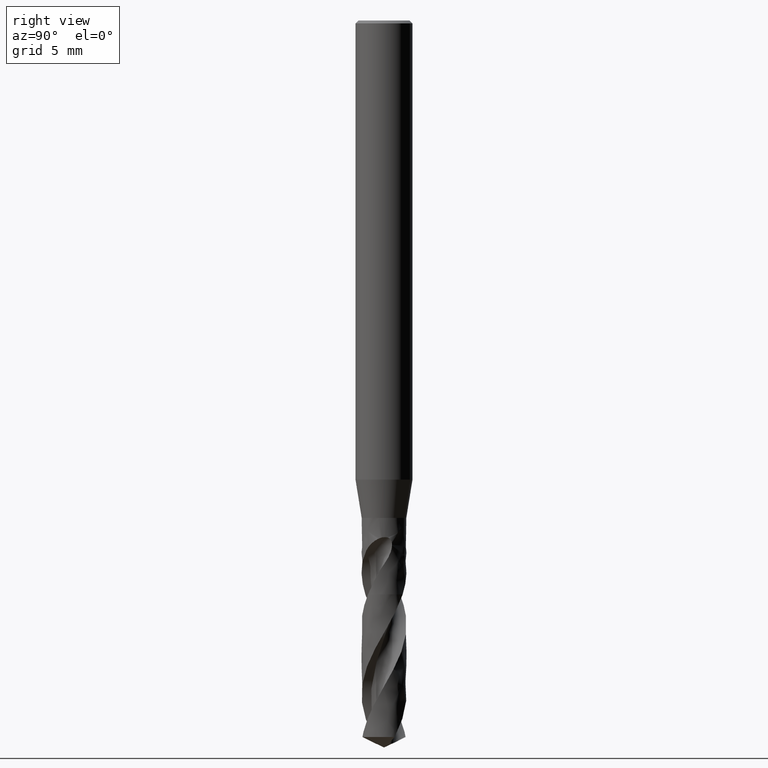
[diagram: clean part render]
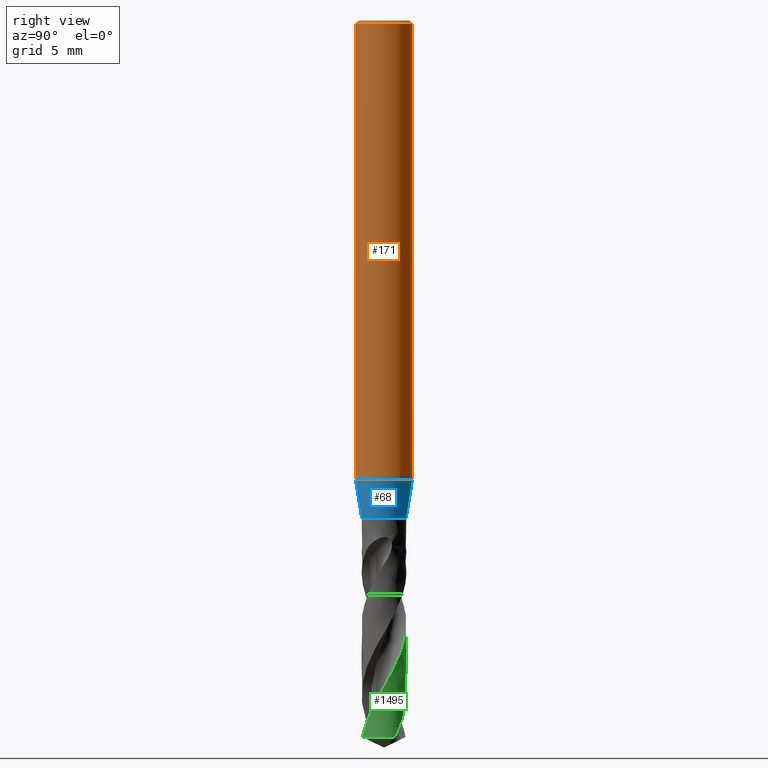
[diagram: same view with three faces highlighted in distinct colors, each labeled with its STEP entity id]
A machine part, right view with three faces highlighted in distinct colors.
Their STEP definitions:

[orange] entity #171 — the highlighted face is a freeform B-spline surface patch.
#73 = VERTEX_POINT('', #74);
#74 = CARTESIAN_POINT('', (-1.5, 1.56142466891288E-15, -24.));
#82 = EDGE_CURVE('', #73, #73, #83, .T.);
#83 = CIRCLE('', #84, 1.5);
#84 = AXIS2_PLACEMENT_3D('', #85, #86, #87);
#85 = CARTESIAN_POINT('', (8.99855869597115E-32, 1.46957615897682E-15, -24.));
#86 = DIRECTION('', (3.74939945665464E-33, 6.12323399573677E-17, -1.));
#87 = DIRECTION('', (-1., 6.12323399573677E-17, 0.));
#120 = VERTEX_POINT('', #121);
#121 = CARTESIAN_POINT('', (-1.5, 1.01033360929657E-16, -0.149999999999999));
#137 = EDGE_CURVE('', #120, #120, #138, .T.);
#138 = CIRCLE('', #139, 1.5);
#139 = AXIS2_PLACEMENT_3D('', #140, #141, #142);
#140 = CARTESIAN_POINT('', (5.62409918498187E-34, 9.18485099360502E-18, -0.149999999999999));
#141 = DIRECTION('', (3.74939945665464E-33, 6.12323399573677E-17, -1.));
#142 = DIRECTION('', (-1., 6.12323399573677E-17, 0.));
#171 = ADVANCED_FACE('', (#172), #183, .T.);
#172 = FACE_OUTER_BOUND('', #173, .T.);
#173 = EDGE_LOOP('', (#174, #180, #181, #182));
#174 = ORIENTED_EDGE('', *, *, #175, .T.);
#175 = EDGE_CURVE('', #73, #120, #176, .T.);
#176 = LINE('', #177, #178);
#177 = CARTESIAN_POINT('', (-1.5, 1.56142466891288E-15, -24.));
#178 = VECTOR('', #179, 23.85);
#179 = DIRECTION('', (0., -1.46039130798322E-15, 23.85));
#180 = ORIENTED_EDGE('', *, *, #137, .T.);
#181 = ORIENTED_EDGE('', *, *, #175, .F.);
#182 = ORIENTED_EDGE('', *, *, #82, .F.);
#183 = (
   BOUNDED_SURFACE ()
   B_SPLINE_SURFACE (1, 2, ((#184, #185, #186, #187, #188, #189, #190, #191, #192), (#193, #194, #195, #196, #197, #198, #199, #200, #201)), .UNSPECIFIED., .F., .T., .U.)
   B_SPLINE_SURFACE_WITH_KNOTS ((2, 2), (3, 2, 2, 2, 3), (0., 1.), (0., 2.35619449019235, 4.71238898038469, 7.06858347057704, 9.42477796076938), .UNSPECIFIED.)
   GEOMETRIC_REPRESENTATION_ITEM ()
   RATIONAL_B_SPLINE_SURFACE (((1., 0.707106781186548, 1., 0.707106781186548, 1., 0.707106781186548, 1., 0.707106781186548, 1.), (1., 0.707106781186548, 1., 0.707106781186548, 1., 0.707106781186548, 1., 0.707106781186548, 1.)))
   REPRESENTATION_ITEM ('')
   SURFACE ()
);
#184 = CARTESIAN_POINT('', (-1.5, 1.56142466891288E-15, -24.));
#185 = CARTESIAN_POINT('', (-1.5, 1.5, -24.));
#186 = CARTESIAN_POINT('', (8.62816615085482E-32, 1.5, -24.));
#187 = CARTESIAN_POINT('', (1.5, 1.5, -24.));
#188 = CARTESIAN_POINT('', (1.5, 1.56142466891288E-15, -24.));
#189 = CARTESIAN_POINT('', (1.5, -1.5, -24.));
#190 = CARTESIAN_POINT('', (1.83697019872103E-16, -1.5, -24.));
#191 = CARTESIAN_POINT('', (-1.5, -1.5, -24.));
#192 = CARTESIAN_POINT('', (-1.5, 1.56142466891288E-15, -24.));
#193 = CARTESIAN_POINT('', (-1.5, 1.01033360929657E-16, -0.149999999999999));
#194 = CARTESIAN_POINT('', (-1.5, 1.5, -0.150000000000002));
#195 = CARTESIAN_POINT('', (0., 1.5, -0.149999999999999));
#196 = CARTESIAN_POINT('', (1.5, 1.5, -0.150000000000002));
#197 = CARTESIAN_POINT('', (1.5, 1.01033360929656E-16, -0.149999999999999));
#198 = CARTESIAN_POINT('', (1.5, -1.5, -0.150000000000002));
#199 = CARTESIAN_POINT('', (1.83697019872103E-16, -1.5, -0.149999999999999));
#200 = CARTESIAN_POINT('', (-1.5, -1.5, -0.150000000000002));
#201 = CARTESIAN_POINT('', (-1.5, 1.01033360929657E-16, -0.149999999999999));

[blue] entity #68 — the highlighted face is a freeform B-spline surface patch.
#68 = ADVANCED_FACE('', (#69), #96, .T.);
#69 = FACE_OUTER_BOUND('', #70, .T.);
#70 = EDGE_LOOP('', (#71, #81, #88, #89));
#71 = ORIENTED_EDGE('', *, *, #72, .F.);
#72 = EDGE_CURVE('', #73, #75, #77, .T.);
#73 = VERTEX_POINT('', #74);
#74 = CARTESIAN_POINT('', (-1.5, 1.56142466891288E-15, -24.));
#75 = VERTEX_POINT('', #76);
#76 = CARTESIAN_POINT('', (-1.175, 1.66398883834147E-15, -26.));
#77 = LINE('', #78, #79);
#78 = CARTESIAN_POINT('', (-1.5, 1.56142466891288E-15, -24.));
#79 = VECTOR('', #80, 2.02623419179521);
#80 = DIRECTION('', (0.325, 1.02564169428591E-16, -2.));
#81 = ORIENTED_EDGE('', *, *, #82, .T.);
#82 = EDGE_CURVE('', #73, #73, #83, .T.);
#83 = CIRCLE('', #84, 1.5);
#84 = AXIS2_PLACEMENT_3D('', #85, #86, #87);
#85 = CARTESIAN_POINT('', (8.99855869597115E-32, 1.46957615897682E-15, -24.));
#86 = DIRECTION('', (3.74939945665464E-33, 6.12323399573677E-17, -1.));
#87 = DIRECTION('', (-1., 6.12323399573677E-17, 0.));
#88 = ORIENTED_EDGE('', *, *, #72, .T.);
#89 = ORIENTED_EDGE('', *, *, #90, .F.);
#90 = EDGE_CURVE('', #75, #75, #91, .T.);
#91 = CIRCLE('', #92, 1.175);
#92 = AXIS2_PLACEMENT_3D('', #93, #94, #95);
#93 = CARTESIAN_POINT('', (9.74843858730207E-32, 1.59204083889156E-15, -26.));
#94 = DIRECTION('', (3.74939945665464E-33, 6.12323399573677E-17, -1.));
#95 = DIRECTION('', (-1., 6.12323399573677E-17, 0.));
#96 = (
   BOUNDED_SURFACE ()
   B_SPLINE_SURFACE (2, 1, ((#97, #98), (#99, #100), (#101, #102), (#103, #104), (#105, #106), (#107, #108), (#109, #110), (#111, #112), (#113, #114)), .UNSPECIFIED., .T., .F., .U.)
   B_SPLINE_SURFACE_WITH_KNOTS ((3, 2, 2, 2, 3), (2, 2), (0., 0.25, 0.5, 0.75, 1.), (0., 1.), .UNSPECIFIED.)
   GEOMETRIC_REPRESENTATION_ITEM ()
   RATIONAL_B_SPLINE_SURFACE (((1., 1.), (0.707106781186548, 0.707106781186548), (1., 1.), (0.707106781186548, 0.707106781186548), (1., 1.), (0.707106781186548, 0.707106781186548), (1., 1.), (0.707106781186548, 0.707106781186548), (1., 1.)))
   REPRESENTATION_ITEM ('')
   SURFACE ()
);
#97 = CARTESIAN_POINT('', (-1.5, 1.56142466891288E-15, -24.));
#98 = CARTESIAN_POINT('', (-1.175, 1.66398883834147E-15, -26.));
#99 = CARTESIAN_POINT('', (-1.5, 1.5, -24.));
#100 = CARTESIAN_POINT('', (-1.175, 1.175, -26.));
#101 = CARTESIAN_POINT('', (8.62816615085482E-32, 1.5, -24.));
#102 = CARTESIAN_POINT('', (9.86076131526265E-32, 1.175, -26.));
#103 = CARTESIAN_POINT('', (1.5, 1.5, -24.));
#104 = CARTESIAN_POINT('', (1.175, 1.175, -26.));
#105 = CARTESIAN_POINT('', (1.5, 1.56142466891288E-15, -24.));
#106 = CARTESIAN_POINT('', (1.175, 1.66398883834147E-15, -26.));
#107 = CARTESIAN_POINT('', (1.5, -1.5, -24.));
#108 = CARTESIAN_POINT('', (1.175, -1.175, -26.));
#109 = CARTESIAN_POINT('', (1.83697019872103E-16, -1.5, -24.));
#110 = CARTESIAN_POINT('', (1.43895998899814E-16, -1.175, -26.));
#111 = CARTESIAN_POINT('', (-1.5, -1.5, -24.));
#112 = CARTESIAN_POINT('', (-1.175, -1.175, -26.));
#113 = CARTESIAN_POINT('', (-1.5, 1.56142466891288E-15, -24.));
#114 = CARTESIAN_POINT('', (-1.175, 1.66398883834147E-15, -26.));

[green] entity #1495 — the highlighted face is a freeform B-spline surface patch.
#1337 = VERTEX_POINT('', #1338);
#1338 = CARTESIAN_POINT('', (-0.825852395738025, 0.835818652851064, -30.));
#1393 = EDGE_CURVE('', #1394, #1337, #1396, .T.);
#1394 = VERTEX_POINT('', #1395);
#1395 = CARTESIAN_POINT('', (-1.175, 1.90891819817094E-15, -30.));
#1396 = CIRCLE('', #1397, 1.175);
#1397 = AXIS2_PLACEMENT_3D('', #1398, #1399, #1400);
#1398 = CARTESIAN_POINT('', (1.12481983699639E-31, 1.83697019872103E-15, -30.));
#1399 = DIRECTION('', (3.74939945665464E-33, 6.12323399573677E-17, -1.));
#1400 = DIRECTION('', (-1., 6.12323399573677E-17, 0.));
#1495 = ADVANCED_FACE('', (#1496), #1718, .T.);
#1496 = FACE_OUTER_BOUND('', #1497, .T.);
#1497 = EDGE_LOOP('', (#1498, #1499, #1526, #1616, #1625, #1634, #1712));
#1498 = ORIENTED_EDGE('', *, *, #1393, .T.);
#1499 = ORIENTED_EDGE('', *, *, #1500, .T.);
#1500 = EDGE_CURVE('', #1337, #1501, #1503, .T.);
#1501 = VERTEX_POINT('', #1502);
#1502 = CARTESIAN_POINT('', (-0.26697209790834, 1.14426871797599, -31.1212727796582));
#1503 = B_SPLINE_CURVE_WITH_KNOTS('', 3, (#1504, #1505, #1506, #1507, #1508, #1509, #1510, #1511, #1512, #1513, #1514, #1515, #1516, #1517, #1518, #1519, #1520, #1521, #1522, #1523, #1524, #1525), .UNSPECIFIED., .F., .U., (4, 3, 3, 3, 3, 3, 3, 4), (0.813532623803669, 0.875933690164875, 1.07293763319325, 1.26990593108702, 1.46682811431798, 1.66370732220614, 1.95877341215135, 2.10770555532025), .UNSPECIFIED.);
#1504 = CARTESIAN_POINT('', (-0.825852395738025, 0.835818652851064, -30.));
#1505 = CARTESIAN_POINT('', (-0.818445904757134, 0.843136829227861, -30.0180067479815));
#1506 = CARTESIAN_POINT('', (-0.810942125325879, 0.850356474669245, -30.0360158168574));
#1507 = CARTESIAN_POINT('', (-0.803348929654479, 0.857470406033355, -30.0540266510148));
#1508 = CARTESIAN_POINT('', (-0.779376751378023, 0.879929517886514, -30.1108879444692));
#1509 = CARTESIAN_POINT('', (-0.75449480592905, 0.901353562566957, -30.1677910714515));
#1510 = CARTESIAN_POINT('', (-0.728767968576532, 0.921695311899133, -30.2246824311101));
#1511 = CARTESIAN_POINT('', (-0.703045786138865, 0.94203338067354, -30.2815634970652));
#1512 = CARTESIAN_POINT('', (-0.676456550652542, 0.961305208071382, -30.3384502827728));
#1513 = CARTESIAN_POINT('', (-0.649111758976145, 0.979427855617195, -30.3953234345152));
#1514 = CARTESIAN_POINT('', (-0.621773369324141, 0.99754626024783, -30.452183270987));
#1515 = CARTESIAN_POINT('', (-0.593672610084757, 1.01452090914273, -30.5090575529595));
#1516 = CARTESIAN_POINT('', (-0.564925686131959, 1.03028344116963, -30.5659246092053));
#1517 = CARTESIAN_POINT('', (-0.536185035768509, 1.04604253325794, -30.6227792550605));
#1518 = CARTESIAN_POINT('', (-0.506783585366916, 1.06059854218704, -30.6796498401915));
#1519 = CARTESIAN_POINT('', (-0.476833319899474, 1.0738971016972, -30.7365089171754));
#1520 = CARTESIAN_POINT('', (-0.431946367035871, 1.09382787040893, -30.8217245461059));
#1521 = CARTESIAN_POINT('', (-0.385791985281999, 1.11094548255398, -30.9069859250054));
#1522 = CARTESIAN_POINT('', (-0.338781901869352, 1.1251008056904, -30.9922118387715));
#1523 = CARTESIAN_POINT('', (-0.31505395510836, 1.13224558675401, -31.0352289065514));
#1524 = CARTESIAN_POINT('', (-0.29109947352036, 1.13863950170627, -31.0782528639844));
#1525 = CARTESIAN_POINT('', (-0.266972097908315, 1.144268717976, -31.1212727796583));
#1526 = ORIENTED_EDGE('', *, *, #1527, .T.);
#1527 = EDGE_CURVE('', #1501, #1528, #1530, .T.);
#1528 = VERTEX_POINT('', #1529);
#1529 = CARTESIAN_POINT('', (0.484981410679121, -1.07024204332276, -37.1754388657541));
#1530 = B_SPLINE_CURVE_WITH_KNOTS('', 3, (#1531, #1532, #1533, #1534, #1535, #1536, #1537, #1538, #1539, #1540, #1541, #1542, #1543, #1544, #1545, #1546, #1547, #1548, #1549, #1550, #1551, #1552, #1553, #1554, #1555, #1556, #1557, #1558, #1559, #1560, #1561, #1562, #1563, #1564, #1565, #1566, #1567, #1568, #1569, #1570, #1571, #1572, #1573, #1574, #1575, #1576, #1577, #1578, #1579, #1580, #1581, #1582, #1583, #1584, #1585, #1586, #1587, #1588, #1589, #1590, #1591, #1592, #1593, #1594, #1595, #1596, #1597, #1598, #1599, #1600, #1601, #1602, #1603, #1604, #1605, #1606, #1607, #1608, #1609, #1610, #1611, #1612, #1613, #1614, #1615), .UNSPECIFIED., .F., .U., (4, 3, 3, 3, 3, 3, 3, 3, 3, 3, 3, 3, 3, 3, 3, 3, 3, 3, 3, 3, 3, 3, 3, 3, 3, 3, 3, 3, 4), (0., 0.294843756684299, 0.491511732513982, 0.530419388641798, 0.556367241475057, 0.852812760780779, 1.14908598698336, 1.44519615523867, 1.74115064617083, 2.03695524308471, 2.33261423586313, 2.62813058028435, 2.92350611585027, 3.21874159822448, 3.51383669492108, 3.80878993747728, 4.10359860910891, 4.23479178679108, 4.27370965887534, 4.57013785983107, 4.8663978603308, 5.1624985766576, 5.45844714150121, 5.75424913949192, 6.04990876853933, 6.34542893833019, 6.64081145444346, 6.9360570782806, 6.97246241237896), .UNSPECIFIED.);
#1531 = CARTESIAN_POINT('', (-0.26697209790834, 1.14426871797599, -31.1212727796582));
#1532 = CARTESIAN_POINT('', (-0.219206679960106, 1.15541298298716, -31.2064401134495));
#1533 = CARTESIAN_POINT('', (-0.170730185221393, 1.16356335772041, -31.2916555218373));
#1534 = CARTESIAN_POINT('', (-0.121969695153957, 1.16865238350175, -31.3768360417025));
#1535 = CARTESIAN_POINT('', (-0.0894452591955109, 1.17204688779995, -31.4336535256824));
#1536 = CARTESIAN_POINT('', (-0.0567772620056454, 1.17408263088167, -31.4904863675599));
#1537 = CARTESIAN_POINT('', (-0.0240934390361698, 1.17475295538911, -31.5473098350783));
#1538 = CARTESIAN_POINT('', (-0.017627460324211, 1.17488556851699, -31.5585514616058));
#1539 = CARTESIAN_POINT('', (-0.011160523142252, 1.17496479273383, -31.5697932934221));
#1540 = CARTESIAN_POINT('', (-0.0046936248493313, 1.17499062544591, -31.5810351434953));
#1541 = CARTESIAN_POINT('', (-0.000380794370900192, 1.17500785350533, -31.5885324306697));
#1542 = CARTESIAN_POINT('', (0.00393205940250807, 1.17500133539659, -31.596029796608));
#1543 = CARTESIAN_POINT('', (0.00824464090065329, 1.17497107449351, -31.603527185728));
#1544 = CARTESIAN_POINT('', (0.0575144386747197, 1.17462535382113, -31.6891823428389));
#1545 = CARTESIAN_POINT('', (0.106774412330736, 1.17117443136474, -31.7748864245607));
#1546 = CARTESIAN_POINT('', (0.155588328871744, 1.16465328399438, -31.8605550572337));
#1547 = CARTESIAN_POINT('', (0.204373874934504, 1.15813592669216, -31.9461738995958));
#1548 = CARTESIAN_POINT('', (0.252761010894092, 1.14854563179499, -32.0318414369643));
#1549 = CARTESIAN_POINT('', (0.300322446314358, 1.13597157897536, -32.1174737595693));
#1550 = CARTESIAN_POINT('', (0.347857705660164, 1.12340444645449, -32.203058953276));
#1551 = CARTESIAN_POINT('', (0.394614322357277, 1.10784465042417, -32.288692569991));
#1552 = CARTESIAN_POINT('', (0.440180490567202, 1.08943386018817, -32.3742912043273));
#1553 = CARTESIAN_POINT('', (0.48572270276395, 1.07103274926361, -32.4598448359326));
#1554 = CARTESIAN_POINT('', (0.530120022605267, 1.04976577026104, -32.5454467109615));
#1555 = CARTESIAN_POINT('', (0.572982836860078, 1.02582438490411, -32.6310136851818));
#1556 = CARTESIAN_POINT('', (0.615823942103333, 1.00189512529814, -32.7165373217338));
#1557 = CARTESIAN_POINT('', (0.657173416990545, 0.975271139810128, -32.8021091729448));
#1558 = CARTESIAN_POINT('', (0.696670127434656, 0.946190114903026, -32.8876461008021));
#1559 = CARTESIAN_POINT('', (0.736147396381112, 0.917123404572281, -32.9731409247484));
#1560 = CARTESIAN_POINT('', (0.773811314601319, 0.885574443732415, -33.058683942628));
#1561 = CARTESIAN_POINT('', (0.809334492612236, 0.851823150112803, -33.1441921138021));
#1562 = CARTESIAN_POINT('', (0.844840531543639, 0.818088140681078, -33.2296590293389));
#1563 = CARTESIAN_POINT('', (0.878241593321823, 0.7821209285082, -33.3151739535754));
#1564 = CARTESIAN_POINT('', (0.909248490403216, 0.744239331599369, -33.4006542452359));
#1565 = CARTESIAN_POINT('', (0.940240613189494, 0.706375784671184, -33.4860938068919));
#1566 = CARTESIAN_POINT('', (0.968870418189944, 0.666563567071444, -33.5715811104992));
#1567 = CARTESIAN_POINT('', (0.994891064340358, 0.625153397251996, -33.6570340353538));
#1568 = CARTESIAN_POINT('', (1.02089937272374, 0.583762862188156, -33.742446442449));
#1569 = CARTESIAN_POINT('', (1.04432595216403, 0.540736204557989, -33.8279063625746));
#1570 = CARTESIAN_POINT('', (1.06497003597385, 0.49645122870012, -33.9133320642138));
#1571 = CARTESIAN_POINT('', (1.08560430343751, 0.452187310529131, -33.9987171455831));
#1572 = CARTESIAN_POINT('', (1.10347846935287, 0.40662400612646, -34.084149671114));
#1573 = CARTESIAN_POINT('', (1.11844090422622, 0.360159608720469, -34.1695479432417));
#1574 = CARTESIAN_POINT('', (1.13339614655939, 0.313717547053794, -34.2549051638623));
#1575 = CARTESIAN_POINT('', (1.14545656666857, 0.266331593944993, -34.3403098695408));
#1576 = CARTESIAN_POINT('', (1.15452167097029, 0.218414082101159, -34.4256803294193));
#1577 = CARTESIAN_POINT('', (1.16358233202364, 0.17052005695959, -34.5110089450846));
#1578 = CARTESIAN_POINT('', (1.16965908831392, 0.122050323260168, -34.5963849317343));
#1579 = CARTESIAN_POINT('', (1.17270359804954, 0.0734252757706789, -34.68172684167));
#1580 = CARTESIAN_POINT('', (1.17405843915544, 0.0517865822418005, -34.7197049523272));
#1581 = CARTESIAN_POINT('', (1.17481411715828, 0.0301107556538506, -34.7576880149677));
#1582 = CARTESIAN_POINT('', (1.1749697241527, 0.0084348873461106, -34.7956687740533));
#1583 = CARTESIAN_POINT('', (1.17501588427482, 0.00200483751410179, -34.8069355971448));
#1584 = CARTESIAN_POINT('', (1.17500925870716, -0.0044254552388517, -34.8182026214746));
#1585 = CARTESIAN_POINT('', (1.17494985797694, -0.0108550099019861, -34.8294696651223));
#1586 = CARTESIAN_POINT('', (1.17449741670379, -0.0598274027813537, -34.9152880642211));
#1587 = CARTESIAN_POINT('', (1.17097717555338, -0.108782601651904, -35.0011544742785));
#1588 = CARTESIAN_POINT('', (1.16442428226694, -0.157293009593933, -35.0869862720122));
#1589 = CARTESIAN_POINT('', (1.15787510724899, -0.205775891569435, -35.1727693667295));
#1590 = CARTESIAN_POINT('', (1.14829059716501, -0.253859957659279, -35.2586002968337));
#1591 = CARTESIAN_POINT('', (1.13575870479871, -0.301126492481069, -35.3443968424343));
#1592 = CARTESIAN_POINT('', (1.12323355020366, -0.348367614453021, -35.430147259527));
#1593 = CARTESIAN_POINT('', (1.10775236951695, -0.394836654439781, -35.5159452226513));
#1594 = CARTESIAN_POINT('', (1.0894543058052, -0.440129884878247, -35.601709091939));
#1595 = CARTESIAN_POINT('', (1.07116564456154, -0.485399841370349, -35.6874288914249));
#1596 = CARTESIAN_POINT('', (1.05004562176538, -0.529538233741597, -35.7731959779566));
#1597 = CARTESIAN_POINT('', (1.02628206785153, -0.572162666736038, -35.8589291648335));
#1598 = CARTESIAN_POINT('', (1.00253028270334, -0.614765990221117, -35.9446198928344));
#1599 = CARTESIAN_POINT('', (0.976115109740833, -0.655897254799407, -36.0303578357703));
#1600 = CARTESIAN_POINT('', (0.94726948436462, -0.695201786527912, -36.1160618322774));
#1601 = CARTESIAN_POINT('', (0.918437742333454, -0.734487401059485, -36.2017245796128));
#1602 = CARTESIAN_POINT('', (0.887151077922559, -0.771984656656141, -36.2874346166245));
#1603 = CARTESIAN_POINT('', (0.853683463601209, -0.807371998507405, -36.3731106924395));
#1604 = CARTESIAN_POINT('', (0.820231635569746, -0.84274264855532, -36.458746355832));
#1605 = CARTESIAN_POINT('', (0.784570088709961, -0.876038005301248, -36.5444292164863));
#1606 = CARTESIAN_POINT('', (0.747009672480375, -0.906973841530592, -36.6300782894386));
#1607 = CARTESIAN_POINT('', (0.709466751941285, -0.937895267807379, -36.7156874669419));
#1608 = CARTESIAN_POINT('', (0.669991975195676, -0.966488001638817, -36.8013435798057));
#1609 = CARTESIAN_POINT('', (0.628928436334371, -0.992508953093119, -36.8869661972615));
#1610 = CARTESIAN_POINT('', (0.587883927987715, -1.01851784537981, -36.9725491337126));
#1611 = CARTESIAN_POINT('', (0.545213759564409, -1.04198165819258, -37.058178717616));
#1612 = CARTESIAN_POINT('', (0.501287826770169, -1.06270198773318, -37.1437750582322));
#1613 = CARTESIAN_POINT('', (0.495871528847872, -1.0652569130518, -37.1543295360166));
#1614 = CARTESIAN_POINT('', (0.490435821172801, -1.06777037094533, -37.1648841905013));
#1615 = CARTESIAN_POINT('', (0.484981410679121, -1.07024204332276, -37.1754388657541));
#1616 = ORIENTED_EDGE('', *, *, #1617, .T.);
#1617 = EDGE_CURVE('', #1528, #1618, #1620, .T.);
#1618 = VERTEX_POINT('', #1619);
#1619 = CARTESIAN_POINT('', (0.338161658511053, -1.12528738227754, -37.4520885016679));
#1620 = B_SPLINE_CURVE_WITH_KNOTS('', 3, (#1621, #1622, #1623, #1624), .UNSPECIFIED., .F., .U., (4, 4), (0., 0.317995361630568), .UNSPECIFIED.);
#1621 = CARTESIAN_POINT('', (0.484981410679131, -1.07024204332276, -37.1754388657541));
#1622 = CARTESIAN_POINT('', (0.437337918856386, -1.09183174634184, -37.2676324373021));
#1623 = CARTESIAN_POINT('', (0.388234499792313, -1.11023992389428, -37.3598824455408));
#1624 = CARTESIAN_POINT('', (0.338161658511053, -1.12528738227754, -37.4520885016679));
#1625 = ORIENTED_EDGE('', *, *, #1626, .F.);
#1626 = EDGE_CURVE('', #1627, #1618, #1629, .T.);
#1627 = VERTEX_POINT('', #1628);
#1628 = CARTESIAN_POINT('', (1.0351719858161, 0.555917223857609, -37.4520885016679));
#1629 = CIRCLE('', #1630, 1.175);
#1630 = AXIS2_PLACEMENT_3D('', #1631, #1632, #1633);
#1631 = CARTESIAN_POINT('', (1.40422840278735E-31, 2.29327901524755E-15, -37.4520885016679));
#1632 = DIRECTION('', (3.74939945665464E-33, 6.12323399573677E-17, -1.));
#1633 = DIRECTION('', (-1., 6.12323399573677E-17, 0.));
#1634 = ORIENTED_EDGE('', *, *, #1635, .T.);
#1635 = EDGE_CURVE('', #1627, #1636, #1638, .T.);
#1636 = VERTEX_POINT('', #1637);
#1637 = CARTESIAN_POINT('', (-1.175, 2.03157615251806E-15, -32.0031564110161));
#1638 = B_SPLINE_CURVE_WITH_KNOTS('', 3, (#1639, #1640, #1641, #1642, #1643, #1644, #1645, #1646, #1647, #1648, #1649, #1650, #1651, #1652, #1653, #1654, #1655, #1656, #1657, #1658, #1659, #1660, #1661, #1662, #1663, #1664, #1665, #1666, #1667, #1668, #1669, #1670, #1671, #1672, #1673, #1674, #1675, #1676, #1677, #1678, #1679, #1680, #1681, #1682, #1683, #1684, #1685, #1686, #1687, #1688, #1689, #1690, #1691, #1692, #1693, #1694, #1695, #1696, #1697, #1698, #1699, #1700, #1701, #1702, #1703, #1704, #1705, #1706, #1707, #1708, #1709, #1710, #1711), .UNSPECIFIED., .F., .U., (4, 3, 3, 3, 3, 3, 3, 3, 3, 3, 3, 3, 3, 3, 3, 3, 3, 3, 3, 3, 3, 3, 3, 3, 4), (0., 0.295820604621354, 0.591498747340604, 0.887036853420942, 1.1824360855505, 1.47769657374923, 1.77281742898967, 2.06779669620986, 2.36263127409298, 2.49382958097573, 2.552179720454, 2.57813065757322, 2.87456031770654, 3.1708230792959, 3.46692704136291, 3.76287858479888, 4.05868259391163, 4.3543426128237, 4.649860875991, 4.94523847467278, 5.24047544044233, 5.53557073013913, 5.83052217641289, 6.12532638183559, 6.27417924285275), .UNSPECIFIED.);
#1639 = CARTESIAN_POINT('', (1.0351719858161, 0.555917223857609, -37.4520885016679));
#1640 = CARTESIAN_POINT('', (1.01209930512748, 0.598880801278004, -37.3663849610252));
#1641 = CARTESIAN_POINT('', (0.986332854485905, 0.64043110545703, -37.2806444532054));
#1642 = CARTESIAN_POINT('', (0.958094086056685, 0.680206382110025, -37.1949483985565));
#1643 = CARTESIAN_POINT('', (0.929868916912304, 0.719962503702555, -37.1092936135918));
#1644 = CARTESIAN_POINT('', (0.899147364030167, 0.757982519980125, -37.0236019659405));
#1645 = CARTESIAN_POINT('', (0.866194207038698, 0.7939348812671, -36.9379546149783));
#1646 = CARTESIAN_POINT('', (0.833256657049168, 0.82987021509378, -36.8523478276068));
#1647 = CARTESIAN_POINT('', (0.798058475899515, 0.863773804170848, -36.7667042961264));
#1648 = CARTESIAN_POINT('', (0.760903546019747, 0.895349537138753, -36.6811050161423));
#1649 = CARTESIAN_POINT('', (0.7237660753163, 0.926910432606193, -36.5955459594322));
#1650 = CARTESIAN_POINT('', (0.684638646510046, 0.956175451506815, -36.5099501090214));
#1651 = CARTESIAN_POINT('', (0.643859150109594, 0.982888800841762, -36.4243985825667));
#1652 = CARTESIAN_POINT('', (0.603098807136138, 1.00958960337669, -36.3388872381904));
#1653 = CARTESIAN_POINT('', (0.560649773858095, 1.03376615016574, -36.2533390036556));
#1654 = CARTESIAN_POINT('', (0.516878576521492, 1.0552068693546, -36.167835165866));
#1655 = CARTESIAN_POINT('', (0.473128079217629, 1.07663744891703, -36.0823717640788));
#1656 = CARTESIAN_POINT('', (0.428015905881747, 1.09535475252014, -35.9968714366423));
#1657 = CARTESIAN_POINT('', (0.381931714569071, 1.11119447686101, -35.9114154875011));
#1658 = CARTESIAN_POINT('', (0.335869632738991, 1.12702660189072, -35.8260005369489));
#1659 = CARTESIAN_POINT('', (0.288793428492616, 1.13999867976909, -35.7405487446246));
#1660 = CARTESIAN_POINT('', (0.241110231106418, 1.14999602453929, -35.6551411856624));
#1661 = CARTESIAN_POINT('', (0.193450422652886, 1.15998846554388, -35.5697755196888));
#1662 = CARTESIAN_POINT('', (0.145139270344985, 1.16701849519161, -35.4843731466476));
#1663 = CARTESIAN_POINT('', (0.0965950486103542, 1.17102279934422, -35.3990149178082));
#1664 = CARTESIAN_POINT('', (0.0749933771027174, 1.17280467285728, -35.3610313977521));
#1665 = CARTESIAN_POINT('', (0.0533390148113878, 1.1739888720396, -35.3230450707439));
#1666 = CARTESIAN_POINT('', (0.0316692016010939, 1.17457314019603, -35.2850630630674));
#1667 = CARTESIAN_POINT('', (0.022031602966388, 1.17483299208917, -35.268170654177));
#1668 = CARTESIAN_POINT('', (0.0123903720637535, 1.17497422908479, -35.2512780761643));
#1669 = CARTESIAN_POINT('', (0.00274880452912335, 1.1749967847078, -35.2343859485514));
#1670 = CARTESIAN_POINT('', (-0.00153923514068849, 1.17500681621003, -35.2268732580007));
#1671 = CARTESIAN_POINT('', (-0.00582739247380461, 1.1749933743252, -35.219360566592));
#1672 = CARTESIAN_POINT('', (-0.0101153813239722, 1.174956458368, -35.2118479310368));
#1673 = CARTESIAN_POINT('', (-0.0590957735029194, 1.17453477861914, -35.1260333805221));
#1674 = CARTESIAN_POINT('', (-0.108079846687255, 1.17104410525844, -35.0401814393605));
#1675 = CARTESIAN_POINT('', (-0.156637945156275, 1.1645125822152, -34.9543744233789));
#1676 = CARTESIAN_POINT('', (-0.205168703999672, 1.15798473660993, -34.8686157192498));
#1677 = CARTESIAN_POINT('', (-0.253320344485864, 1.14841322991115, -34.7828196082298));
#1678 = CARTESIAN_POINT('', (-0.300670619247517, 1.13587947367728, -34.6970684619359));
#1679 = CARTESIAN_POINT('', (-0.347995513833223, 1.12335243565023, -34.6113632790326));
#1680 = CARTESIAN_POINT('', (-0.394564850844463, 1.10785443223264, -34.525620619722));
#1681 = CARTESIAN_POINT('', (-0.439970422736164, 1.08951871352326, -34.4399229758434));
#1682 = CARTESIAN_POINT('', (-0.485352622245203, 1.07119243307038, -34.3542694445712));
#1683 = CARTESIAN_POINT('', (-0.529615153637351, 1.05001403298153, -34.2685784100464));
#1684 = CARTESIAN_POINT('', (-0.572369967164829, 1.02616646831191, -34.1829323734395));
#1685 = CARTESIAN_POINT('', (-0.615103467059659, 1.00233079185302, -34.0973290320993));
#1686 = CARTESIAN_POINT('', (-0.656371206398118, 0.97580602845543, -34.0116882557268));
#1687 = CARTESIAN_POINT('', (-0.695810993454282, 0.946822085393117, -33.9260923576028));
#1688 = CARTESIAN_POINT('', (-0.735231582180883, 0.91785225100969, -33.8405381254811));
#1689 = CARTESIAN_POINT('', (-0.772863585851891, 0.886397986676823, -33.7549465702504));
#1690 = CARTESIAN_POINT('', (-0.808376276875227, 0.852732545986929, -33.669399813251));
#1691 = CARTESIAN_POINT('', (-0.843871941152832, 0.819083246368918, -33.5838940720924));
#1692 = CARTESIAN_POINT('', (-0.877284255014549, 0.783192720592846, -33.4983510248449));
#1693 = CARTESIAN_POINT('', (-0.908319322772822, 0.745373066241009, -33.4128527930952));
#1694 = CARTESIAN_POINT('', (-0.939339618070698, 0.707571413762104, -33.3273952578651));
#1695 = CARTESIAN_POINT('', (-0.968014467774063, 0.6678064811585, -33.2419003592347));
#1696 = CARTESIAN_POINT('', (-0.994091439108539, 0.626424145999432, -33.1564503277489));
#1697 = CARTESIAN_POINT('', (-1.02015599487583, 0.585061513479744, -33.0710409800754));
#1698 = CARTESIAN_POINT('', (-1.04364984452833, 0.542043823870345, -32.9855942277127));
#1699 = CARTESIAN_POINT('', (-1.0643658013089, 0.4977453575917, -32.9001923534573));
#1700 = CARTESIAN_POINT('', (-1.08507181707347, 0.453468148924595, -32.8148314612046));
#1701 = CARTESIAN_POINT('', (-1.10302220399483, 0.407869460440728, -32.7294331912927));
#1702 = CARTESIAN_POINT('', (-1.11805806372041, 0.361346324389619, -32.6440797323315));
#1703 = CARTESIAN_POINT('', (-1.13308659425569, 0.314845865918854, -32.5587678786894));
#1704 = CARTESIAN_POINT('', (-1.14521771794776, 0.267377625116364, -32.4734187353605));
#1705 = CARTESIAN_POINT('', (-1.15434320787738, 0.21935532459416, -32.388114305077));
#1706 = CARTESIAN_POINT('', (-1.16346414232873, 0.171356996981692, -32.3028524590801));
#1707 = CARTESIAN_POINT('', (-1.16959115063311, 0.122759293217622, -32.2175533883946));
#1708 = CARTESIAN_POINT('', (-1.17266835567147, 0.0739859960180227, -32.1322990068586));
#1709 = CARTESIAN_POINT('', (-1.1742221013965, 0.0493593295870249, -32.0892522715256));
#1710 = CARTESIAN_POINT('', (-1.175, 0.0246789660187746, -32.0462012351458));
#1711 = CARTESIAN_POINT('', (-1.175, 2.03678032294599E-15, -32.0031564110161));
#1712 = ORIENTED_EDGE('', *, *, #1713, .F.);
#1713 = EDGE_CURVE('', #1394, #1636, #1714, .T.);
#1714 = LINE('', #1715, #1716);
#1715 = CARTESIAN_POINT('', (-1.175, 1.90891819817094E-15, -30.));
#1716 = VECTOR('', #1717, 2.00315641101611);
#1717 = DIRECTION('', (0., 1.22657954347118E-16, -2.00315641101611));
#1718 = (
   BOUNDED_SURFACE ()
   B_SPLINE_SURFACE (2, 1, ((#1719, #1720), (#1721, #1722), (#1723, #1724), (#1725, #1726), (#1727, #1728), (#1729, #1730), (#1731, #1732)), .UNSPECIFIED., .F., .F., .U.)
   B_SPLINE_SURFACE_WITH_KNOTS ((3, 2, 2, 3), (2, 2), (0., 1.845685683984, 3.69137136796801, 5.17536124802533), (0.349281268601569, 1.), .UNSPECIFIED.)
   GEOMETRIC_REPRESENTATION_ITEM ()
   RATIONAL_B_SPLINE_SURFACE (((1., 1.), (0.707106781186548, 0.707106781186548), (1., 1.), (0.707106781186548, 0.707106781186548), (1., 1.), (0.764504554362494, 0.764504554362494), (0.907700736620474, 0.907700736620474)))
   REPRESENTATION_ITEM ('')
   SURFACE ()
);
#1719 = CARTESIAN_POINT('', (-1.175, 1.90891819817094E-15, -30.));
#1720 = CARTESIAN_POINT('', (-1.175, 2.36522701469745E-15, -37.4520885016679));
#1721 = CARTESIAN_POINT('', (-1.175, 1.175, -30.));
#1722 = CARTESIAN_POINT('', (-1.175, 1.175, -37.4520885016679));
#1723 = CARTESIAN_POINT('', (9.86076131526265E-32, 1.175, -30.));
#1724 = CARTESIAN_POINT('', (1.35585468084861E-31, 1.175, -37.4520885016679));
#1725 = CARTESIAN_POINT('', (1.175, 1.175, -30.));
#1726 = CARTESIAN_POINT('', (1.175, 1.175, -37.4520885016679));
#1727 = CARTESIAN_POINT('', (1.175, 1.90891819817094E-15, -30.));
#1728 = CARTESIAN_POINT('', (1.175, 2.36522701469745E-15, -37.4520885016679));
#1729 = CARTESIAN_POINT('', (1.175, -0.873807941629429, -30.));
#1730 = CARTESIAN_POINT('', (1.175, -0.873807941629428, -37.4520885016679));
#1731 = CARTESIAN_POINT('', (0.338161658511053, -1.12528738227755, -30.));
#1732 = CARTESIAN_POINT('', (0.338161658511053, -1.12528738227755, -37.4520885016679));